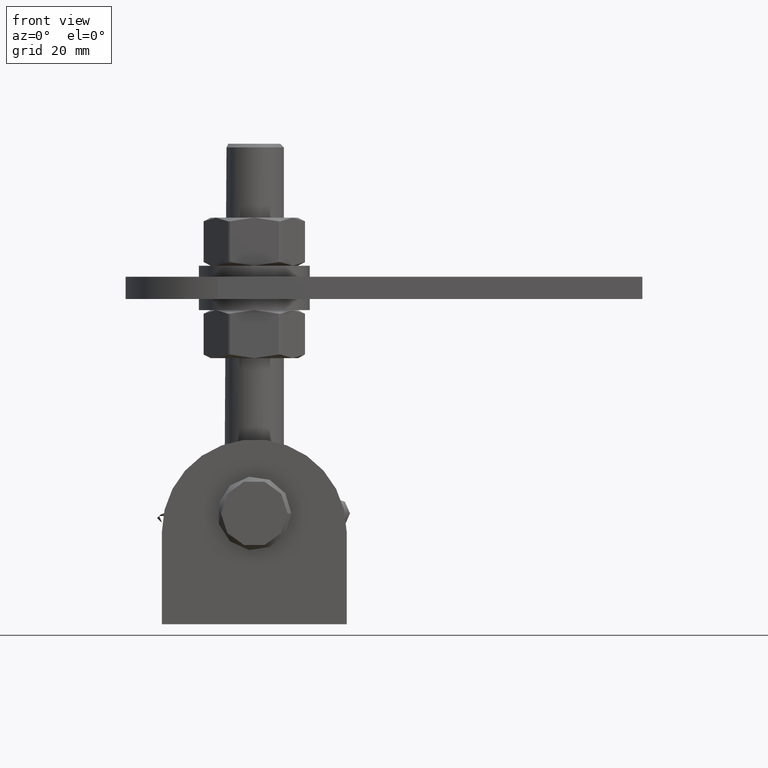
[diagram: clean part render]
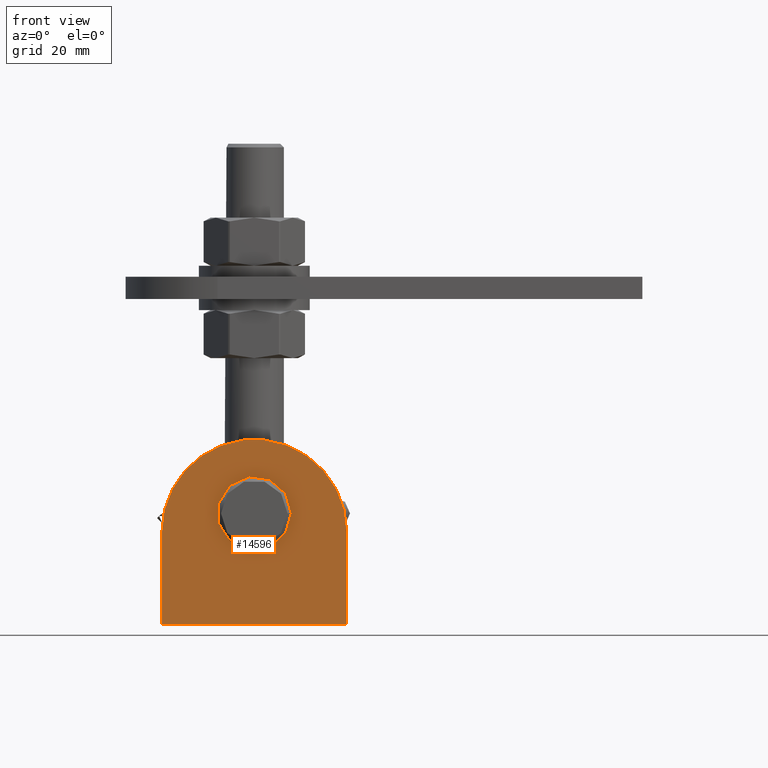
[diagram: same view with one face highlighted and labeled with its STEP entity id]
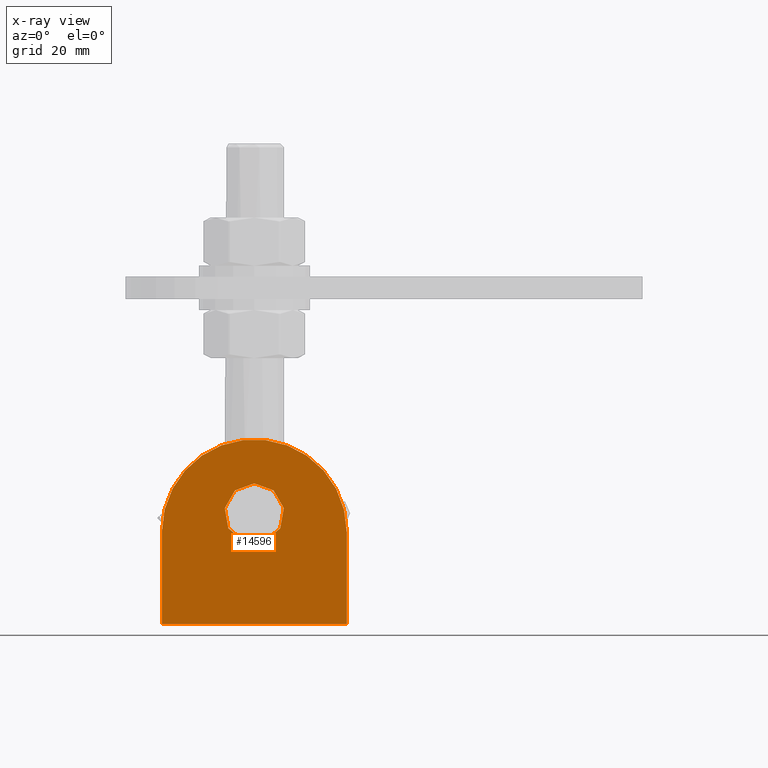
[diagram: x-ray of the same camera — body ghosted, the highlighted face saturated]
A machine part, front view. The second image highlights one B-rep face of the part: STEP entity #14596.
The next image is the same camera in x-ray: the body ghosted, the highlighted face saturated — about 0% of this face is hidden behind the body in this view.
In plain terms, the highlighted planar face has unit normal (0, -1, 0).
Its self-contained STEP definition (entity closure, byte-faithful):
#2883 = VECTOR ( 'NONE', #13054, 1000.000000000000000 ) ;
#3216 = CARTESIAN_POINT ( 'NONE',  ( 25.00000000000000000, -2.999999999999999112, -25.00000000000000711 ) ) ;
#3224 = LINE ( 'NONE', #10829, #2883 ) ;
#3495 = LINE ( 'NONE', #9378, #14691 ) ;
#3593 = CARTESIAN_POINT ( 'NONE',  ( 25.00000000000000711, -2.999999999999999112, -1.301042606982605321E-14 ) ) ;
#3800 = ORIENTED_EDGE ( 'NONE', *, *, #7276, .F. ) ;
#4856 = CARTESIAN_POINT ( 'NONE',  ( 3.469446951953614189E-15, -2.999999999999999112, 4.999999999999997335 ) ) ;
#6072 = CARTESIAN_POINT ( 'NONE',  ( -24.99999999999999645, -2.999999999999999112, -2.602085213965210642E-15 ) ) ;
#7276 = EDGE_CURVE ( 'NONE', #13429, #24711, #3495, .T. ) ;
#8724 = ORIENTED_EDGE ( 'NONE', *, *, #28339, .F. ) ;
#8923 = DIRECTION ( 'NONE',  ( 0.000000000000000000, -0.000000000000000000, -1.000000000000000000 ) ) ;
#9282 = DIRECTION ( 'NONE',  ( -0.000000000000000000, -0.000000000000000000, 1.000000000000000000 ) ) ;
#9364 = DIRECTION ( 'NONE',  ( 0.000000000000000000, 1.000000000000000000, 0.000000000000000000 ) ) ;
#9378 = CARTESIAN_POINT ( 'NONE',  ( -25.00000000000000000, -2.999999999999999112, -6.938893903907228378E-15 ) ) ;
#10370 = CIRCLE ( 'NONE', #27184, 8.099999999999999645 ) ;
#10643 = CARTESIAN_POINT ( 'NONE',  ( 6.938893903907228378E-15, -2.999999999999999112, -6.938893903907228378E-15 ) ) ;
#10829 = CARTESIAN_POINT ( 'NONE',  ( 25.00000000000000000, -2.999999999999999112, -25.00000000000000711 ) ) ;
#11183 = EDGE_CURVE ( 'NONE', #15294, #15294, #10370, .T. ) ;
#11981 = DIRECTION ( 'NONE',  ( 0.000000000000000000, 0.000000000000000000, 1.000000000000000000 ) ) ;
#12430 = AXIS2_PLACEMENT_3D ( 'NONE', #18085, #15844, #8923 ) ;
#12537 = ORIENTED_EDGE ( 'NONE', *, *, #18658, .F. ) ;
#13054 = DIRECTION ( 'NONE',  ( -2.775557561562891844E-16, -0.000000000000000000, -1.000000000000000000 ) ) ;
#13429 = VERTEX_POINT ( 'NONE', #20011 ) ;
#13604 = VECTOR ( 'NONE', #17170, 1000.000000000000000 ) ;
#13605 = CIRCLE ( 'NONE', #16958, 25.00000000000000355 ) ;
#14596 = ADVANCED_FACE ( 'NONE', ( #15502, #25272 ), #28800, .T. ) ;
#14691 = VECTOR ( 'NONE', #9282, 1000.000000000000000 ) ;
#15015 = ORIENTED_EDGE ( 'NONE', *, *, #25339, .F. ) ;
#15116 = ORIENTED_EDGE ( 'NONE', *, *, #11183, .T. ) ;
#15294 = VERTEX_POINT ( 'NONE', #27562 ) ;
#15502 = FACE_OUTER_BOUND ( 'NONE', #19140, .T. ) ;
#15844 = DIRECTION ( 'NONE',  ( 0.000000000000000000, -1.000000000000000000, 0.000000000000000000 ) ) ;
#16958 = AXIS2_PLACEMENT_3D ( 'NONE', #10643, #28369, #26245 ) ;
#17170 = DIRECTION ( 'NONE',  ( -1.000000000000000000, -0.000000000000000000, 1.387778780781445676E-16 ) ) ;
#17356 = CARTESIAN_POINT ( 'NONE',  ( -25.00000000000000000, -2.999999999999999112, -25.00000000000000000 ) ) ;
#18085 = CARTESIAN_POINT ( 'NONE',  ( 6.938893903907228378E-15, -2.999999999999999112, -6.938893903907228378E-15 ) ) ;
#18658 = EDGE_CURVE ( 'NONE', #24711, #24564, #13605, .T. ) ;
#19140 = EDGE_LOOP ( 'NONE', ( #3800, #8724, #15015, #12537 ) ) ;
#19170 = LINE ( 'NONE', #17356, #13604 ) ;
#20011 = CARTESIAN_POINT ( 'NONE',  ( -25.00000000000000000, -2.999999999999999112, -25.00000000000000000 ) ) ;
#22883 = EDGE_LOOP ( 'NONE', ( #15116 ) ) ;
#24564 = VERTEX_POINT ( 'NONE', #3593 ) ;
#24711 = VERTEX_POINT ( 'NONE', #6072 ) ;
#25272 = FACE_BOUND ( 'NONE', #22883, .T. ) ;
#25339 = EDGE_CURVE ( 'NONE', #24564, #27750, #3224, .T. ) ;
#26245 = DIRECTION ( 'NONE',  ( 0.000000000000000000, 0.000000000000000000, -1.000000000000000000 ) ) ;
#27184 = AXIS2_PLACEMENT_3D ( 'NONE', #4856, #9364, #11981 ) ;
#27562 = CARTESIAN_POINT ( 'NONE',  ( 3.469446951953614189E-15, -2.999999999999999112, 13.09999999999999787 ) ) ;
#27750 = VERTEX_POINT ( 'NONE', #3216 ) ;
#28339 = EDGE_CURVE ( 'NONE', #27750, #13429, #19170, .T. ) ;
#28369 = DIRECTION ( 'NONE',  ( 0.000000000000000000, 1.000000000000000000, -0.000000000000000000 ) ) ;
#28800 = PLANE ( 'NONE',  #12430 ) ;